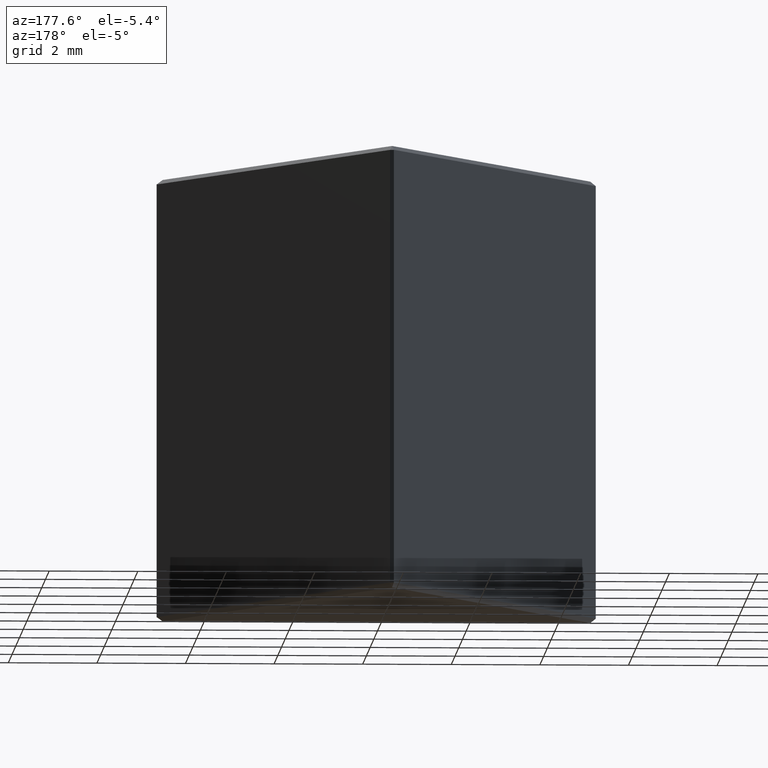
[diagram: clean part render]
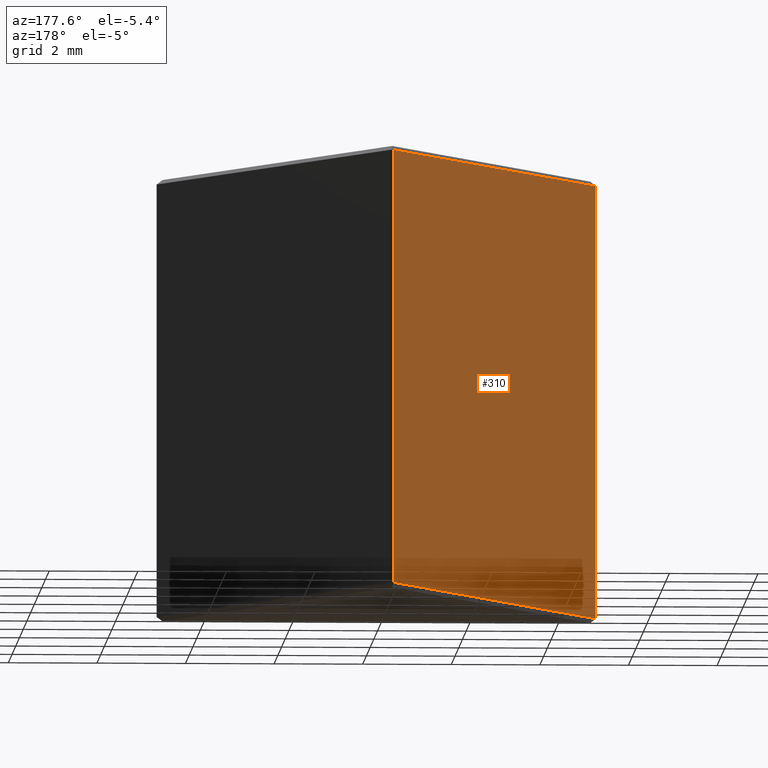
[diagram: same view with one face highlighted and labeled with its STEP entity id]
A machine part, auxiliary view. The second image highlights one B-rep face of the part: STEP entity #310.
In plain terms, the highlighted planar face has unit normal (0.866, -0.5, 0).
Its self-contained STEP definition (entity closure, byte-faithful):
#2 = VECTOR ( 'NONE', #62, 999.9999999999998863 ) ;
#20 = VERTEX_POINT ( 'NONE', #216 ) ;
#30 = EDGE_CURVE ( 'NONE', #381, #426, #358, .T. ) ;
#41 = VECTOR ( 'NONE', #486, 1000.000000000000000 ) ;
#50 = PLANE ( 'NONE',  #464 ) ;
#57 = CARTESIAN_POINT ( 'NONE',  ( -4.949999999999999289, -8.573651497465942128, 9.899999999999998579 ) ) ;
#62 = DIRECTION ( 'NONE',  ( -0.5000000000000001110, -0.8660254037844387076, 0.000000000000000000 ) ) ;
#107 = VERTEX_POINT ( 'NONE', #300 ) ;
#119 = ORIENTED_EDGE ( 'NONE', *, *, #443, .T. ) ;
#123 = DIRECTION ( 'NONE',  ( 0.5000000000000000000, 0.8660254037844385966, 0.000000000000000000 ) ) ;
#139 = LINE ( 'NONE', #179, #2 ) ;
#145 = EDGE_CURVE ( 'NONE', #107, #381, #139, .T. ) ;
#179 = CARTESIAN_POINT ( 'NONE',  ( 0.000000000000000000, 0.000000000000000000, 0.09999999999999939493 ) ) ;
#185 = VECTOR ( 'NONE', #340, 1000.000000000000000 ) ;
#212 = LINE ( 'NONE', #260, #481 ) ;
#216 = CARTESIAN_POINT ( 'NONE',  ( -0.03660254037844420938, -0.06339745962155671211, 9.899999999999998579 ) ) ;
#230 = LINE ( 'NONE', #380, #185 ) ;
#235 = EDGE_CURVE ( 'NONE', #20, #107, #230, .T. ) ;
#254 = ORIENTED_EDGE ( 'NONE', *, *, #30, .T. ) ;
#260 = CARTESIAN_POINT ( 'NONE',  ( -2.934208200658514503E-18, -5.082197683525802034E-18, 9.899999999999998579 ) ) ;
#270 = EDGE_LOOP ( 'NONE', ( #254, #119, #319, #347 ) ) ;
#290 = CARTESIAN_POINT ( 'NONE',  ( -4.949999999999999289, -8.573651497465942128, 0.09999999999999913125 ) ) ;
#300 = CARTESIAN_POINT ( 'NONE',  ( -0.03660254037844420244, -0.06339745962155671211, 0.09999999999999913125 ) ) ;
#310 = ADVANCED_FACE ( 'NONE', ( #439 ), #50, .F. ) ;
#312 = DIRECTION ( 'NONE',  ( 0.8660254037844387076, -0.5000000000000001110, 0.000000000000000000 ) ) ;
#319 = ORIENTED_EDGE ( 'NONE', *, *, #235, .T. ) ;
#329 = DIRECTION ( 'NONE',  ( 0.5000000000000001110, 0.8660254037844387076, 0.000000000000000000 ) ) ;
#340 = DIRECTION ( 'NONE',  ( 0.000000000000000000, 0.000000000000000000, -1.000000000000000000 ) ) ;
#347 = ORIENTED_EDGE ( 'NONE', *, *, #145, .T. ) ;
#349 = CARTESIAN_POINT ( 'NONE',  ( 0.000000000000000000, 0.000000000000000000, 10.00000000000000000 ) ) ;
#358 = LINE ( 'NONE', #453, #41 ) ;
#380 = CARTESIAN_POINT ( 'NONE',  ( -0.03660254037844420244, -0.06339745962155671211, 10.00000000000000000 ) ) ;
#381 = VERTEX_POINT ( 'NONE', #290 ) ;
#426 = VERTEX_POINT ( 'NONE', #57 ) ;
#439 = FACE_OUTER_BOUND ( 'NONE', #270, .T. ) ;
#443 = EDGE_CURVE ( 'NONE', #426, #20, #212, .T. ) ;
#453 = CARTESIAN_POINT ( 'NONE',  ( -4.949999999999999289, -8.573651497465942128, 10.00000000000000000 ) ) ;
#464 = AXIS2_PLACEMENT_3D ( 'NONE', #349, #312, #123 ) ;
#481 = VECTOR ( 'NONE', #329, 999.9999999999998863 ) ;
#486 = DIRECTION ( 'NONE',  ( 0.000000000000000000, 0.000000000000000000, 1.000000000000000000 ) ) ;